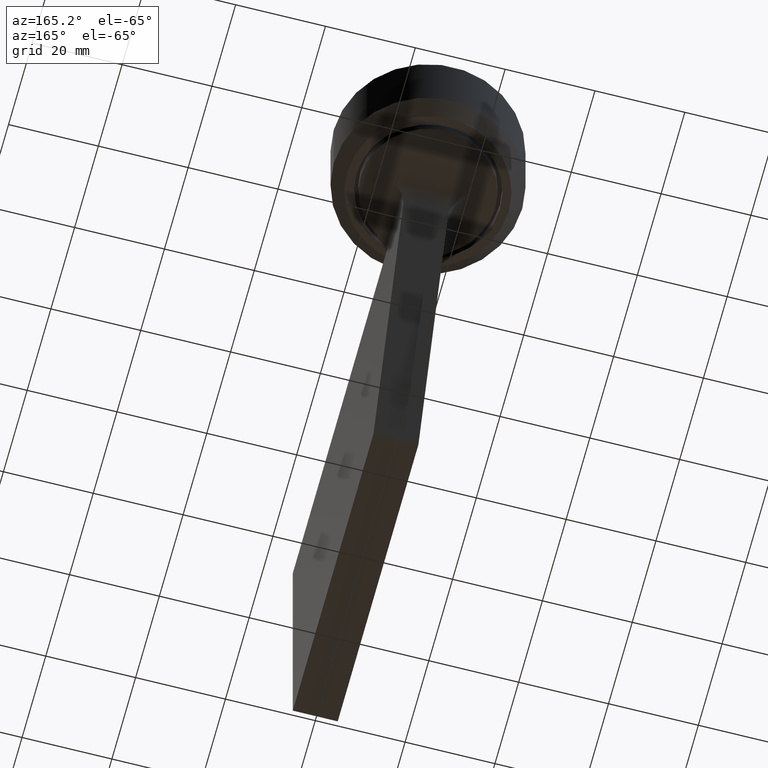
[diagram: clean part render]
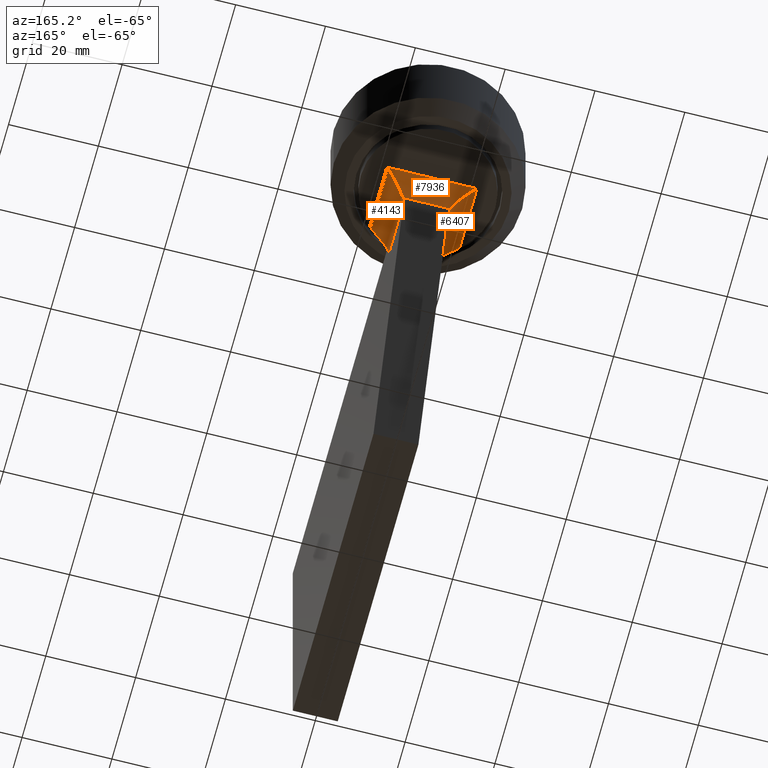
[diagram: same view with one multi-face feature highlighted, each face labeled with its STEP entity id]
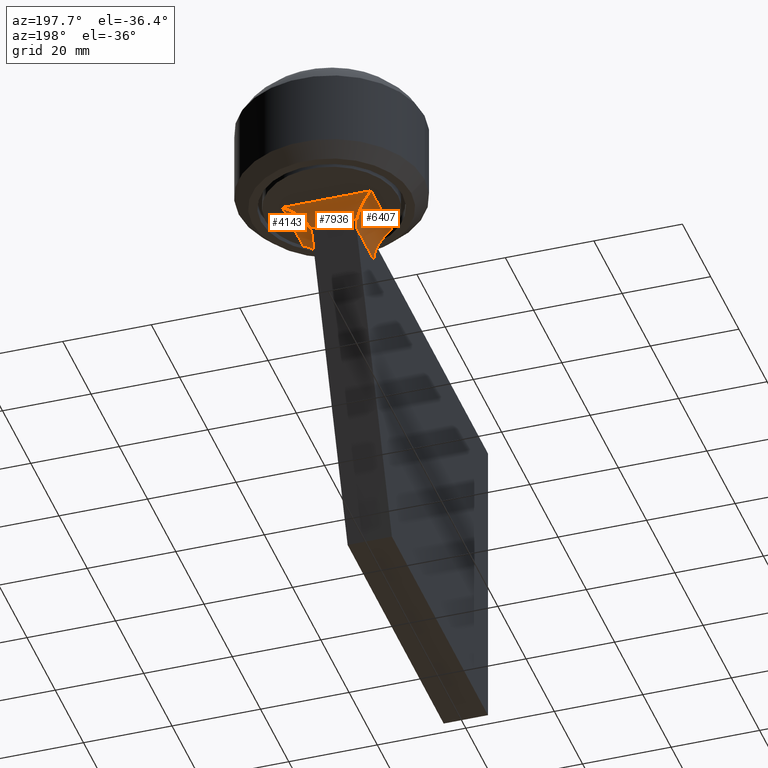
[diagram: same view with one multi-face feature highlighted, each face labeled with its STEP entity id]
A machine part, auxiliary view. The highlighted faces form ONE feature: a constant-radius fillet chain: 3 tangent blend faces with common blend radius 5 mm. The faces share edges in the B-rep.
A second angle (auxiliary view) of the same feature is appended — it is thin or edge-on in the first view.
Their STEP definitions:
[1] entity #7936 (Cylinder):
#286 =( BOUNDED_CURVE ( )  B_SPLINE_CURVE ( 3, ( #1975, #2106, #7645, #6636 ),
 .UNSPECIFIED., .F., .F. ) 
 B_SPLINE_CURVE_WITH_KNOTS ( ( 4, 4 ),
 ( 0.3681307713251618652, 1.570796326794896558 ),
 .UNSPECIFIED. ) 
 CURVE ( )  GEOMETRIC_REPRESENTATION_ITEM ( )  RATIONAL_B_SPLINE_CURVE ( ( 1.000000000000000000, 0.8830548927969981143, 0.8830548927969981143, 1.000000000000000000 ) ) 
 REPRESENTATION_ITEM ( '' )  );
#951 =( BOUNDED_CURVE ( )  B_SPLINE_CURVE ( 3, ( #2513, #9933, #3295, #1477 ),
 .UNSPECIFIED., .F., .F. ) 
 B_SPLINE_CURVE_WITH_KNOTS ( ( 4, 4 ),
 ( 0.3681307713251619207, 1.570796326794896558 ),
 .UNSPECIFIED. ) 
 CURVE ( )  GEOMETRIC_REPRESENTATION_ITEM ( )  RATIONAL_B_SPLINE_CURVE ( ( 1.000000000000000000, 0.8830548927969981143, 0.8830548927969981143, 1.000000000000000000 ) ) 
 REPRESENTATION_ITEM ( '' )  );
#1324 = ORIENTED_EDGE ( 'NONE', *, *, #8764, .F. ) ;
#1382 = CYLINDRICAL_SURFACE ( 'NONE', #1389, 5.000000000000004441 ) ;
#1389 = AXIS2_PLACEMENT_3D ( 'NONE', #4804, #7767, #7603 ) ;
#1477 = CARTESIAN_POINT ( 'NONE',  ( -10.00000000000000000, 98.43047585197219007, -70.00000000000000000 ) ) ;
#1969 = EDGE_CURVE ( 'NONE', #11606, #7528, #951, .T. ) ;
#1975 = CARTESIAN_POINT ( 'NONE',  ( 5.334991708178399072, 93.76546756015059714, -66.79936034113117671 ) ) ;
#2010 = CARTESIAN_POINT ( 'NONE',  ( 5.000000000000000000, 98.43047585197219007, -70.00000000000000000 ) ) ;
#2106 = CARTESIAN_POINT ( 'NONE',  ( 6.103515956872534787, 94.53399180884473196, -68.79183061552339495 ) ) ;
#2513 = CARTESIAN_POINT ( 'NONE',  ( -5.334991708178399072, 93.76546756015059714, -66.79936034113117671 ) ) ;
#2807 = CARTESIAN_POINT ( 'NONE',  ( -5.000000000000000000, 93.76546756015059714, -66.79936034113117671 ) ) ;
#3046 = CARTESIAN_POINT ( 'NONE',  ( 5.334991708178399072, 93.76546756015059714, -66.79936034113117671 ) ) ;
#3295 = CARTESIAN_POINT ( 'NONE',  ( -7.864451518890881232, 96.29492737086306420, -70.00000000000000000 ) ) ;
#3397 = CARTESIAN_POINT ( 'NONE',  ( 10.00000000000000000, 98.43047585197219007, -70.00000000000000000 ) ) ;
#3444 = LINE ( 'NONE', #2807, #10187 ) ;
#4561 = ORIENTED_EDGE ( 'NONE', *, *, #9115, .T. ) ;
#4804 = CARTESIAN_POINT ( 'NONE',  ( 5.000000000000000000, 98.43047585197219007, -65.00000000000000000 ) ) ;
#4945 = EDGE_CURVE ( 'NONE', #7528, #10728, #5210, .T. ) ;
#5210 = LINE ( 'NONE', #2010, #11249 ) ;
#6636 = CARTESIAN_POINT ( 'NONE',  ( 10.00000000000000000, 98.43047585197219007, -70.00000000000000000 ) ) ;
#6713 = DIRECTION ( 'NONE',  ( 1.000000000000000000, -0.000000000000000000, -0.000000000000000000 ) ) ;
#6935 = CARTESIAN_POINT ( 'NONE',  ( -5.334991708178399072, 93.76546756015059714, -66.79936034113117671 ) ) ;
#7528 = VERTEX_POINT ( 'NONE', #11884 ) ;
#7603 = DIRECTION ( 'NONE',  ( 0.000000000000000000, 0.000000000000000000, -1.000000000000000000 ) ) ;
#7645 = CARTESIAN_POINT ( 'NONE',  ( 7.864451518890883008, 96.29492737086306420, -70.00000000000000000 ) ) ;
#7767 = DIRECTION ( 'NONE',  ( 1.000000000000000000, 0.000000000000000000, 0.000000000000000000 ) ) ;
#7923 = VERTEX_POINT ( 'NONE', #3046 ) ;
#7936 = ADVANCED_FACE ( 'NONE', ( #8859 ), #1382, .F. ) ;
#8764 = EDGE_CURVE ( 'NONE', #7923, #11606, #3444, .T. ) ;
#8859 = FACE_OUTER_BOUND ( 'NONE', #11468, .T. ) ;
#9115 = EDGE_CURVE ( 'NONE', #7923, #10728, #286, .T. ) ;
#9373 = DIRECTION ( 'NONE',  ( -1.000000000000000000, 0.000000000000000000, 0.000000000000000000 ) ) ;
#9933 = CARTESIAN_POINT ( 'NONE',  ( -6.103515956872533899, 94.53399180884473196, -68.79183061552339495 ) ) ;
#10187 = VECTOR ( 'NONE', #9373, 1000.000000000000000 ) ;
#10728 = VERTEX_POINT ( 'NONE', #3397 ) ;
#10854 = ORIENTED_EDGE ( 'NONE', *, *, #4945, .F. ) ;
#10954 = ORIENTED_EDGE ( 'NONE', *, *, #1969, .F. ) ;
#11249 = VECTOR ( 'NONE', #6713, 1000.000000000000000 ) ;
#11468 = EDGE_LOOP ( 'NONE', ( #4561, #10854, #10954, #1324 ) ) ;
#11606 = VERTEX_POINT ( 'NONE', #6935 ) ;
#11884 = CARTESIAN_POINT ( 'NONE',  ( -10.00000000000000000, 98.43047585197219007, -70.00000000000000000 ) ) ;
[2] entity #4143 (Cylinder):
#781 = CARTESIAN_POINT ( 'NONE',  ( -5.000000000000000000, 93.07142857142856940, -65.00000000000000000 ) ) ;
#796 = CARTESIAN_POINT ( 'NONE',  ( -5.598105273271358762, 81.08289148526014856, -67.39740271684064510 ) ) ;
#875 = CARTESIAN_POINT ( 'NONE',  ( -10.00000000000000000, 83.81966011250105453, -70.00000000000000000 ) ) ;
#951 =( BOUNDED_CURVE ( )  B_SPLINE_CURVE ( 3, ( #2513, #9933, #3295, #1477 ),
 .UNSPECIFIED., .F., .F. ) 
 B_SPLINE_CURVE_WITH_KNOTS ( ( 4, 4 ),
 ( 0.3681307713251619207, 1.570796326794896558 ),
 .UNSPECIFIED. ) 
 CURVE ( )  GEOMETRIC_REPRESENTATION_ITEM ( )  RATIONAL_B_SPLINE_CURVE ( ( 1.000000000000000000, 0.8830548927969981143, 0.8830548927969981143, 1.000000000000000000 ) ) 
 REPRESENTATION_ITEM ( '' )  );
#1213 = LINE ( 'NONE', #7134, #5035 ) ;
#1365 = DIRECTION ( 'NONE',  ( 0.000000000000000000, 1.000000000000000000, 0.000000000000000000 ) ) ;
#1477 = CARTESIAN_POINT ( 'NONE',  ( -10.00000000000000000, 98.43047585197219007, -70.00000000000000000 ) ) ;
#1752 = CARTESIAN_POINT ( 'NONE',  ( -8.893782432554731443, 82.91587122155810619, -69.88436929183367852 ) ) ;
#1775 = VERTEX_POINT ( 'NONE', #10358 ) ;
#1815 = CARTESIAN_POINT ( 'NONE',  ( -5.112935729164912679, 93.54341158113710719, -66.22365965479991701 ) ) ;
#1861 = CARTESIAN_POINT ( 'NONE',  ( -10.00000000000000000, 83.81966011250105453, -70.00000000000000000 ) ) ;
#1969 = EDGE_CURVE ( 'NONE', #11606, #7528, #951, .T. ) ;
#2503 = VERTEX_POINT ( 'NONE', #1861 ) ;
#2513 = CARTESIAN_POINT ( 'NONE',  ( -5.334991708178399072, 93.76546756015059714, -66.79936034113117671 ) ) ;
#2619 = CARTESIAN_POINT ( 'NONE',  ( -8.609036403000919435, 82.71162101074403949, -69.81234514404620484 ) ) ;
#2676 = CARTESIAN_POINT ( 'NONE',  ( -5.334991708178399072, 93.76546756015059714, -66.79936034113117671 ) ) ;
#2733 = CARTESIAN_POINT ( 'NONE',  ( -5.776742903790235140, 81.15511344378032277, -67.69932062798582706 ) ) ;
#3019 = LINE ( 'NONE', #5527, #3311 ) ;
#3295 = CARTESIAN_POINT ( 'NONE',  ( -7.864451518890881232, 96.29492737086306420, -70.00000000000000000 ) ) ;
#3311 = VECTOR ( 'NONE', #12070, 1000.000000000000000 ) ;
#3547 = CARTESIAN_POINT ( 'NONE',  ( -9.731297589390718983, 83.57932537016486663, -70.00000000000001421 ) ) ;
#3591 = CARTESIAN_POINT ( 'NONE',  ( -6.193494600001877792, 81.33646213563883975, -68.26078962724383814 ) ) ;
#3671 = CARTESIAN_POINT ( 'NONE',  ( -5.000000000000000000, 80.85786437626904899, -65.00000000000000000 ) ) ;
#3696 = CARTESIAN_POINT ( 'NONE',  ( -4.999999999999999112, 93.30943026952070340, -65.61704143949813783 ) ) ;
#3711 = ORIENTED_EDGE ( 'NONE', *, *, #4257, .F. ) ;
#3910 = B_SPLINE_CURVE_WITH_KNOTS ( 'NONE', 3,
 ( #3671, #8331, #9335, #4566, #6383, #796, #2733, #3591, #10230, #11224, #11140, #4609, #8211, #2619, #1752, #11180, #3547, #875 ),
 .UNSPECIFIED., .F., .F.,
 ( 4, 2, 2, 2, 2, 2, 2, 2, 4 ),
 ( 0.000000000000000000, 0.001069635468731681928, 0.002139270937463363855, 0.003208906406195045566, 0.004278541874926727710, 0.005348177343658409855, 0.006417812812390091132, 0.007487448281121773276, 0.008557083749853455421 ),
 .UNSPECIFIED. ) ;
#4118 = CARTESIAN_POINT ( 'NONE',  ( -10.00000000000000000, 95.00000000000000000, -65.00000000000000000 ) ) ;
#4143 = ADVANCED_FACE ( 'NONE', ( #10777 ), #10468, .F. ) ;
#4257 = EDGE_CURVE ( 'NONE', #11606, #8103, #5178, .T. ) ;
#4362 = DIRECTION ( 'NONE',  ( 0.000000000000000000, 1.000000000000000000, 0.000000000000000000 ) ) ;
#4566 = CARTESIAN_POINT ( 'NONE',  ( -5.190393757300626021, 80.92639653721704462, -66.41226612414560293 ) ) ;
#4609 = CARTESIAN_POINT ( 'NONE',  ( -7.749555281340571256, 82.15297892024840110, -69.47638614556124992 ) ) ;
#4839 = EDGE_LOOP ( 'NONE', ( #10419, #6117, #3711, #5002, #6175 ) ) ;
#5002 = ORIENTED_EDGE ( 'NONE', *, *, #1969, .T. ) ;
#5035 = VECTOR ( 'NONE', #4362, 1000.000000000000000 ) ;
#5178 =( BOUNDED_CURVE ( )  B_SPLINE_CURVE ( 3, ( #2676, #1815, #3696, #781 ),
 .UNSPECIFIED., .F., .F. ) 
 B_SPLINE_CURVE_WITH_KNOTS ( ( 4, 4 ),
 ( 1.202665555469734748, 1.570796326794896558 ),
 .UNSPECIFIED. ) 
 CURVE ( )  GEOMETRIC_REPRESENTATION_ITEM ( )  RATIONAL_B_SPLINE_CURVE ( ( 1.000000000000000000, 0.9887384935822896015, 0.9887384935822896015, 1.000000000000000000 ) ) 
 REPRESENTATION_ITEM ( '' )  );
#5527 = CARTESIAN_POINT ( 'NONE',  ( -5.000000000000000000, 0.000000000000000000, -65.00000000000000000 ) ) ;
#6117 = ORIENTED_EDGE ( 'NONE', *, *, #7693, .F. ) ;
#6175 = ORIENTED_EDGE ( 'NONE', *, *, #11151, .F. ) ;
#6383 = CARTESIAN_POINT ( 'NONE',  ( -5.305322866042324392, 80.96866929515513789, -66.75619576921575060 ) ) ;
#6935 = CARTESIAN_POINT ( 'NONE',  ( -5.334991708178399072, 93.76546756015059714, -66.79936034113117671 ) ) ;
#7134 = CARTESIAN_POINT ( 'NONE',  ( -10.00000000000000000, 95.00000000000000000, -70.00000000000000000 ) ) ;
#7528 = VERTEX_POINT ( 'NONE', #11884 ) ;
#7693 = EDGE_CURVE ( 'NONE', #8103, #1775, #3019, .T. ) ;
#8103 = VERTEX_POINT ( 'NONE', #8227 ) ;
#8211 = CARTESIAN_POINT ( 'NONE',  ( -8.033155687149855950, 82.32766100209616411, -69.60705643145499266 ) ) ;
#8227 = CARTESIAN_POINT ( 'NONE',  ( -5.000000000000000000, 93.07142857142856940, -65.00000000000000000 ) ) ;
#8331 = CARTESIAN_POINT ( 'NONE',  ( -5.000000000000000000, 80.85786437626903478, -65.36169873849873113 ) ) ;
#8707 = EDGE_CURVE ( 'NONE', #1775, #2503, #3910, .T. ) ;
#9335 = CARTESIAN_POINT ( 'NONE',  ( -5.038790721293072927, 80.87140878040231939, -65.71638698208043650 ) ) ;
#9933 = CARTESIAN_POINT ( 'NONE',  ( -6.103515956872533899, 94.53399180884473196, -68.79183061552339495 ) ) ;
#10230 = CARTESIAN_POINT ( 'NONE',  ( -6.424720926931017928, 81.44267360036126036, -68.51137071147795155 ) ) ;
#10358 = CARTESIAN_POINT ( 'NONE',  ( -5.000000000000000000, 80.85786437626904899, -65.00000000000000000 ) ) ;
#10419 = ORIENTED_EDGE ( 'NONE', *, *, #8707, .F. ) ;
#10468 = CYLINDRICAL_SURFACE ( 'NONE', #10581, 4.999999999999997335 ) ;
#10581 = AXIS2_PLACEMENT_3D ( 'NONE', #4118, #1365, #10775 ) ;
#10775 = DIRECTION ( 'NONE',  ( 0.000000000000000000, 0.000000000000000000, 1.000000000000000000 ) ) ;
#10777 = FACE_OUTER_BOUND ( 'NONE', #4839, .T. ) ;
#11140 = CARTESIAN_POINT ( 'NONE',  ( -7.196928446273957114, 81.83543473481378783, -69.15274899561804034 ) ) ;
#11151 = EDGE_CURVE ( 'NONE', #2503, #7528, #1213, .T. ) ;
#11180 = CARTESIAN_POINT ( 'NONE',  ( -9.454412855575577979, 83.34926560907364035, -69.97826429123355751 ) ) ;
#11224 = CARTESIAN_POINT ( 'NONE',  ( -6.925378765659766955, 81.69145886855224603, -68.95715162573969792 ) ) ;
#11606 = VERTEX_POINT ( 'NONE', #6935 ) ;
#11884 = CARTESIAN_POINT ( 'NONE',  ( -10.00000000000000000, 98.43047585197219007, -70.00000000000000000 ) ) ;
#12070 = DIRECTION ( 'NONE',  ( -0.000000000000000000, -1.000000000000000000, -0.000000000000000000 ) ) ;
[3] entity #6407 (Cylinder):
#59 =( BOUNDED_CURVE ( )  B_SPLINE_CURVE ( 3, ( #6565, #6530, #9326, #6606 ),
 .UNSPECIFIED., .F., .F. ) 
 B_SPLINE_CURVE_WITH_KNOTS ( ( 4, 4 ),
 ( 1.570796326794896558, 1.938927098120058368 ),
 .UNSPECIFIED. ) 
 CURVE ( )  GEOMETRIC_REPRESENTATION_ITEM ( )  RATIONAL_B_SPLINE_CURVE ( ( 1.000000000000000000, 0.9887384935822896015, 0.9887384935822896015, 1.000000000000000000 ) ) 
 REPRESENTATION_ITEM ( '' )  );
#76 = ORIENTED_EDGE ( 'NONE', *, *, #9115, .F. ) ;
#210 = CARTESIAN_POINT ( 'NONE',  ( 5.039689158750703335, 80.87172028421237258, -65.72416727215498611 ) ) ;
#286 =( BOUNDED_CURVE ( )  B_SPLINE_CURVE ( 3, ( #1975, #2106, #7645, #6636 ),
 .UNSPECIFIED., .F., .F. ) 
 B_SPLINE_CURVE_WITH_KNOTS ( ( 4, 4 ),
 ( 0.3681307713251618652, 1.570796326794896558 ),
 .UNSPECIFIED. ) 
 CURVE ( )  GEOMETRIC_REPRESENTATION_ITEM ( )  RATIONAL_B_SPLINE_CURVE ( ( 1.000000000000000000, 0.8830548927969981143, 0.8830548927969981143, 1.000000000000000000 ) ) 
 REPRESENTATION_ITEM ( '' )  );
#374 = CARTESIAN_POINT ( 'NONE',  ( 5.612051598046488010, 81.08905564688146228, -67.40354239198489950 ) ) ;
#683 = ORIENTED_EDGE ( 'NONE', *, *, #11907, .F. ) ;
#754 = ORIENTED_EDGE ( 'NONE', *, *, #3680, .F. ) ;
#1042 = DIRECTION ( 'NONE',  ( 0.000000000000000000, -1.000000000000000000, -0.000000000000000000 ) ) ;
#1115 = LINE ( 'NONE', #10326, #2878 ) ;
#1268 = CARTESIAN_POINT ( 'NONE',  ( 6.430774396168144058, 81.44545595392152393, -68.51792334892704162 ) ) ;
#1921 = EDGE_LOOP ( 'NONE', ( #683, #754, #76, #6377, #2505 ) ) ;
#1975 = CARTESIAN_POINT ( 'NONE',  ( 5.334991708178399072, 93.76546756015059714, -66.79936034113117671 ) ) ;
#2057 = CARTESIAN_POINT ( 'NONE',  ( 8.048590994029508394, 82.33754219397100371, -69.61340453245242088 ) ) ;
#2106 = CARTESIAN_POINT ( 'NONE',  ( 6.103515956872534787, 94.53399180884473196, -68.79183061552339495 ) ) ;
#2178 = CARTESIAN_POINT ( 'NONE',  ( 5.194201574352487860, 80.92779247774682005, -66.42597453410627395 ) ) ;
#2505 = ORIENTED_EDGE ( 'NONE', *, *, #5707, .F. ) ;
#2521 = EDGE_CURVE ( 'NONE', #5922, #7923, #59, .T. ) ;
#2548 = VERTEX_POINT ( 'NONE', #9651 ) ;
#2550 = VECTOR ( 'NONE', #1042, 1000.000000000000000 ) ;
#2878 = VECTOR ( 'NONE', #8539, 1000.000000000000000 ) ;
#2996 = CARTESIAN_POINT ( 'NONE',  ( 5.000000000000000000, 80.85786437626904899, -65.00000000000000000 ) ) ;
#3041 = CARTESIAN_POINT ( 'NONE',  ( 6.198903445864757167, 81.33894929351178860, -68.26662589347205312 ) ) ;
#3046 = CARTESIAN_POINT ( 'NONE',  ( 5.334991708178399072, 93.76546756015059714, -66.79936034113117671 ) ) ;
#3076 = CARTESIAN_POINT ( 'NONE',  ( 7.206005790446256221, 81.84038969255026075, -69.15885719286323763 ) ) ;
#3324 = CARTESIAN_POINT ( 'NONE',  ( 5.000000000000000000, 80.85786437626904899, -65.00000000000000000 ) ) ;
#3397 = CARTESIAN_POINT ( 'NONE',  ( 10.00000000000000000, 98.43047585197219007, -70.00000000000000000 ) ) ;
#3680 = EDGE_CURVE ( 'NONE', #10728, #2548, #10328, .T. ) ;
#3977 = AXIS2_PLACEMENT_3D ( 'NONE', #5629, #8350, #6555 ) ;
#4015 = CARTESIAN_POINT ( 'NONE',  ( 10.00000000000000000, 83.81966011250105453, -70.00000000000000000 ) ) ;
#4878 = CARTESIAN_POINT ( 'NONE',  ( 6.938833699087743057, 81.69837940219699135, -68.96792350961230511 ) ) ;
#5424 = VERTEX_POINT ( 'NONE', #3324 ) ;
#5629 = CARTESIAN_POINT ( 'NONE',  ( 10.00000000000000000, 0.000000000000000000, -65.00000000000000000 ) ) ;
#5707 = EDGE_CURVE ( 'NONE', #5424, #5922, #1115, .T. ) ;
#5922 = VERTEX_POINT ( 'NONE', #7915 ) ;
#5976 = CARTESIAN_POINT ( 'NONE',  ( 7.759232921613454792, 82.15880973725442971, -69.48123417085844267 ) ) ;
#6377 = ORIENTED_EDGE ( 'NONE', *, *, #2521, .F. ) ;
#6407 = ADVANCED_FACE ( 'NONE', ( #10805 ), #8730, .F. ) ;
#6530 = CARTESIAN_POINT ( 'NONE',  ( 4.999999999999999112, 93.30943026952070340, -65.61704143949813783 ) ) ;
#6555 = DIRECTION ( 'NONE',  ( 0.000000000000000000, 0.000000000000000000, -1.000000000000000000 ) ) ;
#6565 = CARTESIAN_POINT ( 'NONE',  ( 5.000000000000000000, 93.07142857142856940, -65.00000000000000000 ) ) ;
#6589 = B_SPLINE_CURVE_WITH_KNOTS ( 'NONE', 3,
 ( #4015, #6800, #9563, #2057, #5976, #3076, #4878, #1268, #3041, #8635, #11491, #374, #8595, #9641, #2178, #210, #6885, #2996 ),
 .UNSPECIFIED., .F., .F.,
 ( 4, 2, 2, 2, 2, 2, 2, 2, 4 ),
 ( 0.000000000000000000, 0.002126259922065674383, 0.003189389883098513526, 0.004252519844131353102, 0.005315649805164192679, 0.005847214785680612467, 0.006378779766197032255, 0.007441909727229903924, 0.008505039688262775593 ),
 .UNSPECIFIED. ) ;
#6606 = CARTESIAN_POINT ( 'NONE',  ( 5.334991708178399072, 93.76546756015059714, -66.79936034113117671 ) ) ;
#6636 = CARTESIAN_POINT ( 'NONE',  ( 10.00000000000000000, 98.43047585197219007, -70.00000000000000000 ) ) ;
#6800 = CARTESIAN_POINT ( 'NONE',  ( 9.462532149765078060, 83.33893425296267310, -70.00000000000000000 ) ) ;
#6885 = CARTESIAN_POINT ( 'NONE',  ( 5.000000000000000888, 80.85786437626907741, -65.36264239809879939 ) ) ;
#7645 = CARTESIAN_POINT ( 'NONE',  ( 7.864451518890883008, 96.29492737086306420, -70.00000000000000000 ) ) ;
#7915 = CARTESIAN_POINT ( 'NONE',  ( 5.000000000000000000, 93.07142857142856940, -65.00000000000000000 ) ) ;
#7923 = VERTEX_POINT ( 'NONE', #3046 ) ;
#8350 = DIRECTION ( 'NONE',  ( 0.000000000000000000, -1.000000000000000000, 0.000000000000000000 ) ) ;
#8539 = DIRECTION ( 'NONE',  ( 0.000000000000000000, 1.000000000000000000, 0.000000000000000000 ) ) ;
#8595 = CARTESIAN_POINT ( 'NONE',  ( 5.528918201077762440, 81.05592086121697548, -67.24516983530176617 ) ) ;
#8635 = CARTESIAN_POINT ( 'NONE',  ( 5.889244984825882767, 81.20400525178408202, -67.85157643079422485 ) ) ;
#8730 = CYLINDRICAL_SURFACE ( 'NONE', #3977, 5.000000000000004441 ) ;
#9115 = EDGE_CURVE ( 'NONE', #7923, #10728, #286, .T. ) ;
#9326 = CARTESIAN_POINT ( 'NONE',  ( 5.112935729164911791, 93.54341158113710719, -66.22365965479991701 ) ) ;
#9563 = CARTESIAN_POINT ( 'NONE',  ( 8.904183107082939586, 82.90925387289560433, -69.91580911872488002 ) ) ;
#9590 = CARTESIAN_POINT ( 'NONE',  ( 10.00000000000000000, 80.85786437626904899, -70.00000000000000000 ) ) ;
#9641 = CARTESIAN_POINT ( 'NONE',  ( 5.307466454433289904, 80.96946480541541291, -66.76226249229274856 ) ) ;
#9651 = CARTESIAN_POINT ( 'NONE',  ( 10.00000000000000000, 83.81966011250105453, -70.00000000000000000 ) ) ;
#10326 = CARTESIAN_POINT ( 'NONE',  ( 5.000000000000000000, 95.00000000000000000, -65.00000000000000000 ) ) ;
#10328 = LINE ( 'NONE', #9590, #2550 ) ;
#10728 = VERTEX_POINT ( 'NONE', #3397 ) ;
#10805 = FACE_OUTER_BOUND ( 'NONE', #1921, .T. ) ;
#11491 = CARTESIAN_POINT ( 'NONE',  ( 5.792314419731568798, 81.16314379645191934, -67.70674883686608325 ) ) ;
#11907 = EDGE_CURVE ( 'NONE', #2548, #5424, #6589, .T. ) ;